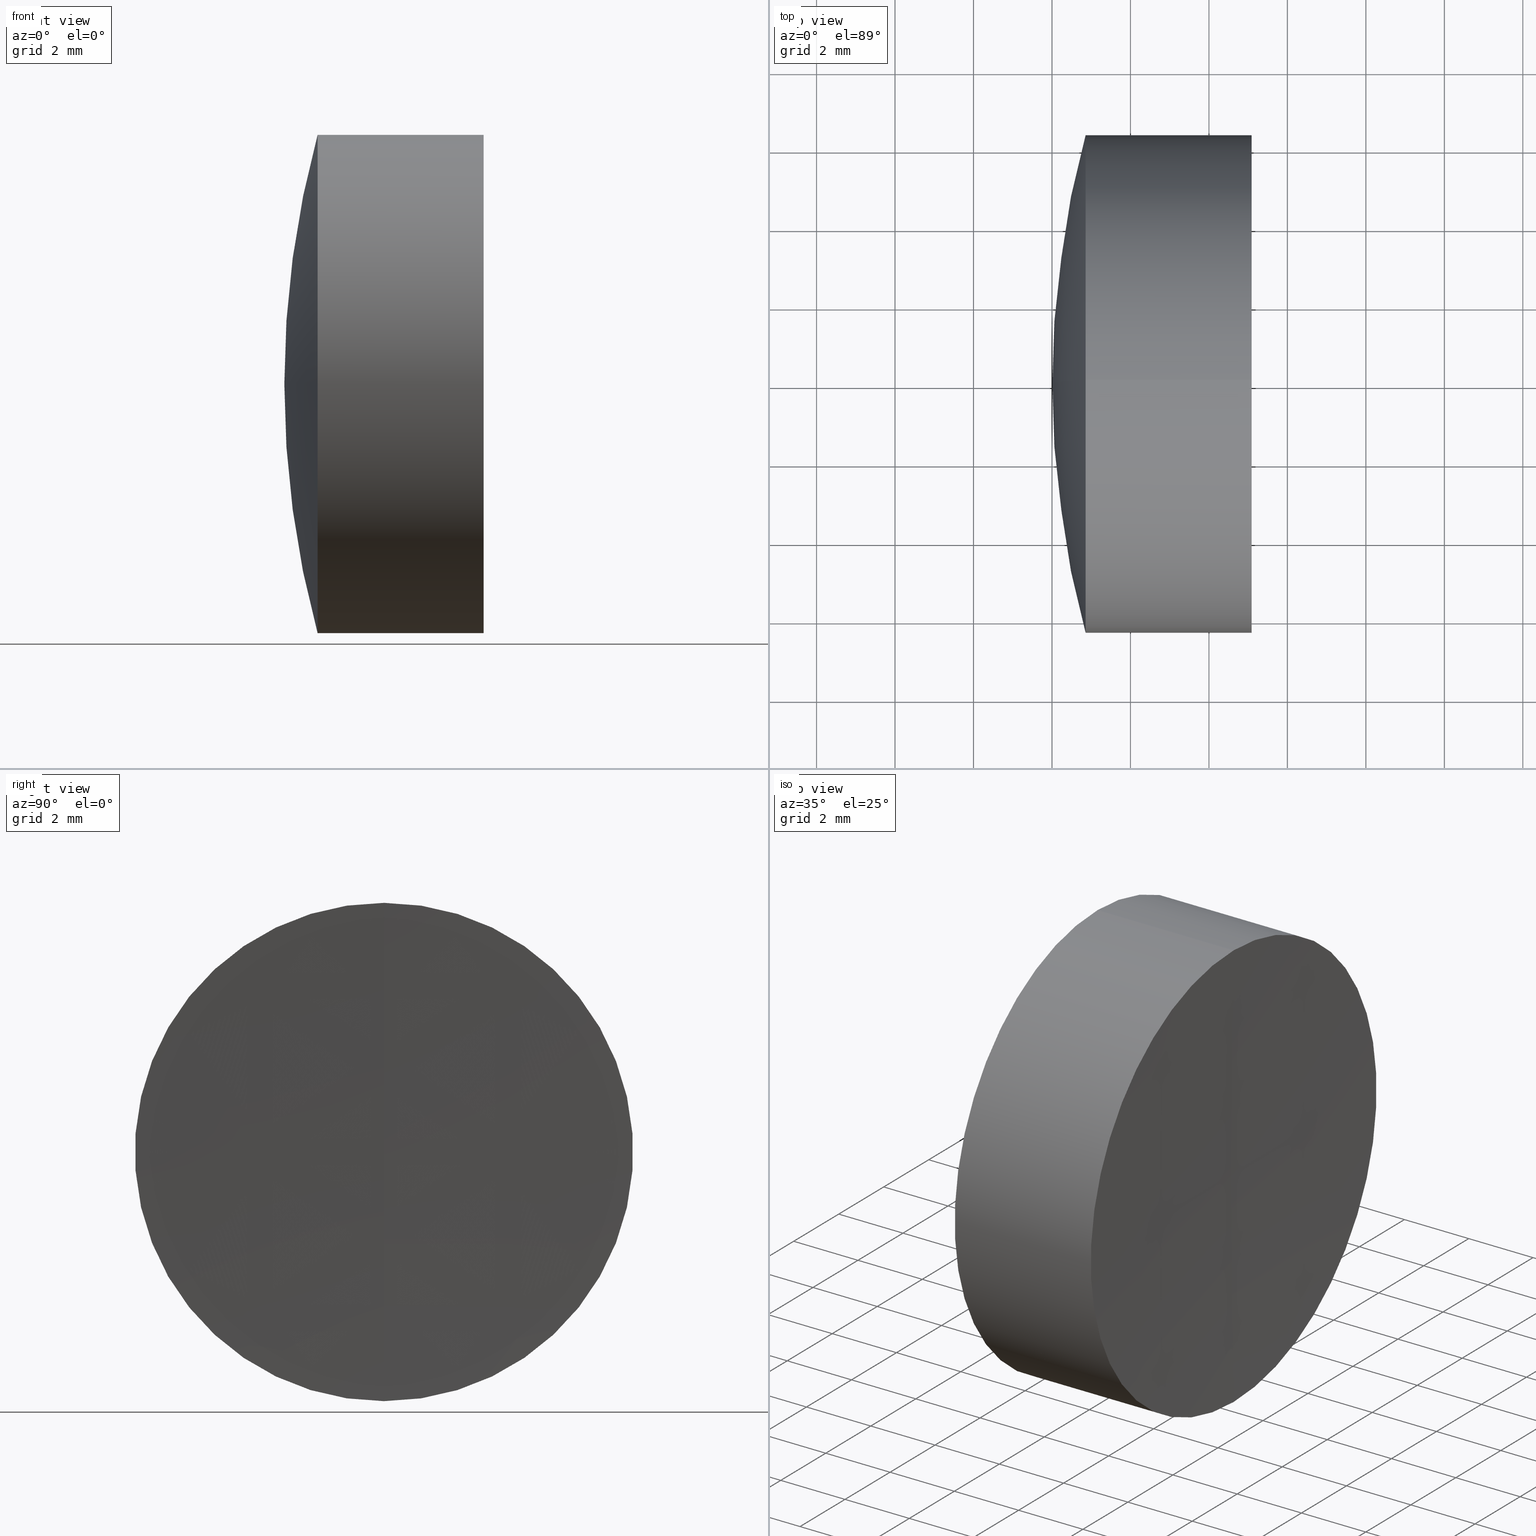
[diagram: canonical four-view strip — front | top / right | iso, engineering-drawing reading convention]
A machine part, canonical four-view strip (front | top / right | iso — engineering-drawing reading convention). The complete STEP part file that produces these views, byte-faithful:
ISO-10303-21;
HEADER;
FILE_DESCRIPTION (( 'STEP AP214' ),
    '1' );
FILE_NAME ('145112.STEP',
    '2019-05-31T01:19:49',
    ( 'user' ),
    ( '΢���й�' ),
    'SwSTEP 2.0',
    'SolidWorks 2016',
    '' );
FILE_SCHEMA (( 'AUTOMOTIVE_DESIGN' ));
ENDSEC;

DATA;
#1 = CARTESIAN_POINT ( 'NONE',  ( 287.5089566504702200, 0.0000000000000000000, -1.828420241096160700E-015 ) ) ;
#2 = DIRECTION ( 'NONE',  ( 0.0000000000000000000, 1.000000000000000000, 0.0000000000000000000 ) ) ;
#3 = EDGE_CURVE ( 'NONE', #342, #303, #123, .T. ) ;
#4 = STYLED_ITEM ( 'NONE', ( #218 ), #281 ) ;
#5 = VERTEX_POINT ( 'NONE', #310 ) ;
#6 = DIRECTION ( 'NONE',  ( 0.0000000000000000000, 1.000000000000000000, 0.0000000000000000000 ) ) ;
#7 = COLOUR_RGB ( '',1.000000000000000000, 1.000000000000000000, 1.000000000000000000 ) ;
#8 = DIRECTION ( 'NONE',  ( 0.0000000000000000000, 1.000000000000000000, 0.0000000000000000000 ) ) ;
#9 = DIRECTION ( 'NONE',  ( -0.0000000000000000000, -1.000000000000000000, -0.0000000000000000000 ) ) ;
#10 = EDGE_LOOP ( 'NONE', ( #326, #204, #52 ) ) ;
#11 = AXIS2_PLACEMENT_3D ( 'NONE', #208, #22, #184 ) ;
#12 = ORIENTED_EDGE ( 'NONE', *, *, #230, .F. ) ;
#13 = SPHERICAL_SURFACE ( 'NONE', #77, 249.9999999999999700 ) ;
#14 = UNCERTAINTY_MEASURE_WITH_UNIT (LENGTH_MEASURE( 1.000000000000000100E-005 ), #308, 'distance_accuracy_value', 'NONE');
#15 = EDGE_CURVE ( 'NONE', #120, #69, #19, .T. ) ;
#16 = FACE_OUTER_BOUND ( 'NONE', #156, .T. ) ;
#17 = PRODUCT_RELATED_PRODUCT_CATEGORY ( 'part', '', ( #159 ) ) ;
#18 = ORIENTED_EDGE ( 'NONE', *, *, #73, .F. ) ;
#19 = CIRCLE ( 'NONE', #116, 6.349999999999932100 ) ;
#20 = AXIS2_PLACEMENT_3D ( 'NONE', #79, #61, #334 ) ;
#21 = ORIENTED_EDGE ( 'NONE', *, *, #332, .T. ) ;
#22 = DIRECTION ( 'NONE',  ( -1.000000000000000000, -0.0000000000000000000, -0.0000000000000000000 ) ) ;
#23 = CARTESIAN_POINT ( 'NONE',  ( 286.7458055381524700, 0.0000000000000000000, 6.349999999999917900 ) ) ;
#24 = SURFACE_STYLE_USAGE ( .BOTH. , #211 ) ;
#25 = ORIENTED_EDGE ( 'NONE', *, *, #124, .F. ) ;
#26 = EDGE_CURVE ( 'NONE', #246, #120, #264, .T. ) ;
#27 = COLOUR_RGB ( '',1.000000000000000000, 1.000000000000000000, 1.000000000000000000 ) ;
#28 = PRESENTATION_LAYER_ASSIGNMENT (  '', '', ( #4 ) ) ;
#29 = CARTESIAN_POINT ( 'NONE',  ( 287.5089566504702200, 0.0000000000000000000, -1.828420241096161500E-015 ) ) ;
#30 = LINE ( 'NONE', #167, #227 ) ;
#31 = DIRECTION ( 'NONE',  ( -1.000000000000000000, -0.0000000000000000000, -0.0000000000000000000 ) ) ;
#32 = DIRECTION ( 'NONE',  ( 0.0000000000000000000, 0.0000000000000000000, 1.000000000000000000 ) ) ;
#33 = DIRECTION ( 'NONE',  ( -0.0000000000000000000, 1.000000000000000000, 1.224646799147353200E-016 ) ) ;
#34 = DIRECTION ( 'NONE',  ( -1.000000000000000000, -0.0000000000000000000, -0.0000000000000000000 ) ) ;
#35 = MANIFOLD_SOLID_BREP ( '��ת1', #314 ) ;
#36 = DIRECTION ( 'NONE',  ( -1.000000000000000000, -0.0000000000000000000, -0.0000000000000000000 ) ) ;
#37 = ORIENTED_EDGE ( 'NONE', *, *, #228, .T. ) ;
#38 = EDGE_CURVE ( 'NONE', #5, #94, #144, .T. ) ;
#39 = CARTESIAN_POINT ( 'NONE',  ( 286.7458055381524700, 0.0000000000000000000, 0.0000000000000000000 ) ) ;
#40 = FACE_OUTER_BOUND ( 'NONE', #233, .T. ) ;
#41 = PRESENTATION_LAYER_ASSIGNMENT (  '', '', ( #320 ) ) ;
#42 = DIRECTION ( 'NONE',  ( -1.000000000000000000, -0.0000000000000000000, -0.0000000000000000000 ) ) ;
#43 = PRODUCT_DEFINITION_SHAPE ( 'NONE', 'NONE',  #324 ) ;
#44 = DIRECTION ( 'NONE',  ( 0.0000000000000000000, 0.0000000000000000000, -1.000000000000000000 ) ) ;
#45 = EDGE_CURVE ( 'NONE', #5, #171, #333, .T. ) ;
#46 = CLOSED_SHELL ( 'NONE', ( #277, #313, #206, #78, #289, #53 ) ) ;
#47 = CARTESIAN_POINT ( 'NONE',  ( 260.7089566504702100, 0.0000000000000000000, -3.469446951953614200E-015 ) ) ;
#48 = ORIENTED_EDGE ( 'NONE', *, *, #280, .F. ) ;
#49 = AXIS2_PLACEMENT_3D ( 'NONE', #309, #137, #286 ) ;
#50 = LINE ( 'NONE', #222, #242 ) ;
#51 = MECHANICAL_DESIGN_GEOMETRIC_PRESENTATION_REPRESENTATION (  '', ( #4 ), #67 ) ;
#52 = ORIENTED_EDGE ( 'NONE', *, *, #38, .F. ) ;
#53 = ADVANCED_FACE ( 'NONE', ( #265 ), #71, .F. ) ;
#54 = DIRECTION ( 'NONE',  ( 0.0000000000000000000, 0.0000000000000000000, 1.000000000000000000 ) ) ;
#55 = LINE ( 'NONE', #298, #247 ) ;
#56 = DIRECTION ( 'NONE',  ( 0.0000000000000000000, 0.0000000000000000000, 1.000000000000000000 ) ) ;
#57 = FILL_AREA_STYLE ('',( #287 ) ) ;
#58 = EDGE_CURVE ( 'NONE', #342, #213, #203, .T. ) ;
#59 =( NAMED_UNIT ( * ) SI_UNIT ( $, .STERADIAN. ) SOLID_ANGLE_UNIT ( ) );
#60 = DIRECTION ( 'NONE',  ( -1.000000000000000000, -0.0000000000000000000, -0.0000000000000000000 ) ) ;
#61 = DIRECTION ( 'NONE',  ( 0.0000000000000000000, 1.000000000000000000, 0.0000000000000000000 ) ) ;
#62 = CARTESIAN_POINT ( 'NONE',  ( -0.5519199926577972300, 0.0000000000000000000, 0.0000000000000000000 ) ) ;
#63 = ORIENTED_EDGE ( 'NONE', *, *, #15, .T. ) ;
#64 = FILL_AREA_STYLE_COLOUR ( '', #7 ) ;
#65 = DIRECTION ( 'NONE',  ( 0.0000000000000000000, 0.0000000000000000000, 1.000000000000000000 ) ) ;
#66 = FACE_OUTER_BOUND ( 'NONE', #128, .T. ) ;
#67 =( GEOMETRIC_REPRESENTATION_CONTEXT ( 3 ) GLOBAL_UNCERTAINTY_ASSIGNED_CONTEXT ( ( #86 ) ) GLOBAL_UNIT_ASSIGNED_CONTEXT ( ( #113, #263, #89 ) ) REPRESENTATION_CONTEXT ( 'NONE', 'WORKASPACE' ) );
#68 = CARTESIAN_POINT ( 'NONE',  ( 308.2089566504702100, 0.0000000000000000000, -3.485532528785909500E-015 ) ) ;
#69 = VERTEX_POINT ( 'NONE', #23 ) ;
#70 = CARTESIAN_POINT ( 'NONE',  ( 308.2089566504702100, 0.0000000000000000000, -3.485532528785909500E-015 ) ) ;
#71 = SPHERICAL_SURFACE ( 'NONE', #151, 249.9999999999999700 ) ;
#72 = AXIS2_PLACEMENT_3D ( 'NONE', #91, #319, #174 ) ;
#73 = EDGE_CURVE ( 'NONE', #122, #99, #131, .T. ) ;
#74 = ORIENTED_EDGE ( 'NONE', *, *, #127, .F. ) ;
#75 = EDGE_LOOP ( 'NONE', ( #48, #260, #101 ) ) ;
#76 = SHAPE_DEFINITION_REPRESENTATION ( #43, #297 ) ;
#77 = AXIS2_PLACEMENT_3D ( 'NONE', #268, #9, #199 ) ;
#78 = ADVANCED_FACE ( 'NONE', ( #207 ), #329, .F. ) ;
#79 = CARTESIAN_POINT ( 'NONE',  ( 260.7089566504702100, 0.0000000000000000000, -3.469446951953614200E-015 ) ) ;
#80 = APPLICATION_CONTEXT ( 'automotive_design' ) ;
#81 = CARTESIAN_POINT ( 'NONE',  ( 289.0896146618997600, 0.0000000000000000000, 0.0000000000000000000 ) ) ;
#82 = ORIENTED_EDGE ( 'NONE', *, *, #127, .T. ) ;
#83 = AXIS2_PLACEMENT_3D ( 'NONE', #189, #339, #165 ) ;
#84 =( LENGTH_UNIT ( ) NAMED_UNIT ( * ) SI_UNIT ( .MILLI., .METRE. ) );
#85 = DIRECTION ( 'NONE',  ( -1.000000000000000000, -0.0000000000000000000, -0.0000000000000000000 ) ) ;
#86 = UNCERTAINTY_MEASURE_WITH_UNIT (LENGTH_MEASURE( 1.000000000000000100E-005 ), #113, 'distance_accuracy_value', 'NONE');
#87 = CIRCLE ( 'NONE', #154, 6.349999999999996100 ) ;
#88 = ADVANCED_FACE ( 'NONE', ( #66 ), #193, .T. ) ;
#89 =( NAMED_UNIT ( * ) SI_UNIT ( $, .STERADIAN. ) SOLID_ANGLE_UNIT ( ) );
#90 = ORIENTED_EDGE ( 'NONE', *, *, #26, .T. ) ;
#91 = CARTESIAN_POINT ( 'NONE',  ( 308.2089566504702100, 0.0000000000000000000, -3.485532528785909500E-015 ) ) ;
#92 = AXIS2_PLACEMENT_3D ( 'NONE', #81, #234, #56 ) ;
#93 = DIRECTION ( 'NONE',  ( -1.000000000000000000, -0.0000000000000000000, -0.0000000000000000000 ) ) ;
#94 = VERTEX_POINT ( 'NONE', #250 ) ;
#95 = CARTESIAN_POINT ( 'NONE',  ( 260.7089566504702100, 0.0000000000000000000, -3.469446951953614200E-015 ) ) ;
#96 = FACE_OUTER_BOUND ( 'NONE', #10, .T. ) ;
#97 = CYLINDRICAL_SURFACE ( 'NONE', #118, 6.349999999999918800 ) ;
#98 = EDGE_CURVE ( 'NONE', #213, #303, #251, .T. ) ;
#99 = VERTEX_POINT ( 'NONE', #105 ) ;
#100 = PRESENTATION_STYLE_ASSIGNMENT (( #24 ) ) ;
#101 = ORIENTED_EDGE ( 'NONE', *, *, #38, .T. ) ;
#102 = FACE_OUTER_BOUND ( 'NONE', #249, .T. ) ;
#103 =( GEOMETRIC_REPRESENTATION_CONTEXT ( 3 ) GLOBAL_UNCERTAINTY_ASSIGNED_CONTEXT ( ( #14 ) ) GLOBAL_UNIT_ASSIGNED_CONTEXT ( ( #308, #134, #283 ) ) REPRESENTATION_CONTEXT ( 'NONE', 'WORKASPACE' ) );
#104 = ADVANCED_FACE ( 'NONE', ( #318 ), #117, .T. ) ;
#105 = CARTESIAN_POINT ( 'NONE',  ( 284.8569224778333400, 0.0000000000000000000, 6.350000000000001400 ) ) ;
#106 = DIRECTION ( 'NONE',  ( 0.0000000000000000000, -1.000000000000000000, 0.0000000000000000000 ) ) ;
#107 = DIRECTION ( 'NONE',  ( 1.000000000000000000, 0.0000000000000000000, 0.0000000000000000000 ) ) ;
#108 = CIRCLE ( 'NONE', #145, 6.349999999999996100 ) ;
#109 = SURFACE_SIDE_STYLE ('',( #148 ) ) ;
#110 = DIRECTION ( 'NONE',  ( -0.0000000000000000000, -1.000000000000000000, -0.0000000000000000000 ) ) ;
#111 = DIRECTION ( 'NONE',  ( 0.0000000000000000000, 0.0000000000000000000, 1.000000000000000000 ) ) ;
#112 = EDGE_CURVE ( 'NONE', #171, #69, #55, .T. ) ;
#113 =( LENGTH_UNIT ( ) NAMED_UNIT ( * ) SI_UNIT ( .MILLI., .METRE. ) );
#114 = ORIENTED_EDGE ( 'NONE', *, *, #112, .T. ) ;
#115 = CARTESIAN_POINT ( 'NONE',  ( 124.5233095260452400, 0.0000000000000000000, 0.0000000000000000000 ) ) ;
#116 = AXIS2_PLACEMENT_3D ( 'NONE', #214, #31, #188 ) ;
#117 = CYLINDRICAL_SURFACE ( 'NONE', #160, 6.349999999999996100 ) ;
#118 = AXIS2_PLACEMENT_3D ( 'NONE', #347, #36, #65 ) ;
#119 = CARTESIAN_POINT ( 'NONE',  ( 289.0896146618997600, 0.0000000000000000000, 6.349999999999906400 ) ) ;
#120 = VERTEX_POINT ( 'NONE', #291 ) ;
#121 = DIRECTION ( 'NONE',  ( -1.000000000000000000, -0.0000000000000000000, -0.0000000000000000000 ) ) ;
#122 = VERTEX_POINT ( 'NONE', #271 ) ;
#123 = CIRCLE ( 'NONE', #294, 26.79999999999999000 ) ;
#124 = EDGE_CURVE ( 'NONE', #99, #201, #305, .T. ) ;
#125 = SPHERICAL_SURFACE ( 'NONE', #254, 24.20000000000000600 ) ;
#126 = ORIENTED_EDGE ( 'NONE', *, *, #112, .F. ) ;
#127 = EDGE_CURVE ( 'NONE', #5, #120, #50, .T. ) ;
#128 = EDGE_LOOP ( 'NONE', ( #149, #312, #274 ) ) ;
#129 = FACE_OUTER_BOUND ( 'NONE', #300, .T. ) ;
#130 = CARTESIAN_POINT ( 'NONE',  ( 260.7089566504702100, 0.0000000000000000000, -3.469446951953614200E-015 ) ) ;
#131 = CIRCLE ( 'NONE', #11, 6.349999999999996100 ) ;
#132 = CARTESIAN_POINT ( 'NONE',  ( 0.0000000000000000000, 0.0000000000000000000, 0.0000000000000000000 ) ) ;
#133 = DIRECTION ( 'NONE',  ( 0.0000000000000000000, 1.000000000000000000, -0.0000000000000000000 ) ) ;
#134 =( NAMED_UNIT ( * ) PLANE_ANGLE_UNIT ( ) SI_UNIT ( $, .RADIAN. ) );
#135 = AXIS2_PLACEMENT_3D ( 'NONE', #278, #106, #252 ) ;
#136 = AXIS2_PLACEMENT_3D ( 'NONE', #343, #34, #111 ) ;
#137 = DIRECTION ( 'NONE',  ( -0.0000000000000000000, 1.000000000000000000, 1.224646799147353200E-016 ) ) ;
#138 = ORIENTED_EDGE ( 'NONE', *, *, #306, .T. ) ;
#139 = CARTESIAN_POINT ( 'NONE',  ( 260.7089566504702100, 0.0000000000000000000, -3.469446951953614200E-015 ) ) ;
#140 = CARTESIAN_POINT ( 'NONE',  ( 286.7458055381524700, 7.776507174585689200E-016, -6.349999999999996100 ) ) ;
#141 = EDGE_LOOP ( 'NONE', ( #198, #330, #284 ) ) ;
#142 = DIRECTION ( 'NONE',  ( 0.0000000000000000000, 0.0000000000000000000, 1.000000000000000000 ) ) ;
#143 = SURFACE_SIDE_STYLE ('',( #219 ) ) ;
#144 = CIRCLE ( 'NONE', #345, 249.9999999999999700 ) ;
#145 = AXIS2_PLACEMENT_3D ( 'NONE', #244, #42, #220 ) ;
#146 = CARTESIAN_POINT ( 'NONE',  ( 286.7458055381524700, 0.0000000000000000000, 6.349999999999996100 ) ) ;
#147 = ORIENTED_EDGE ( 'NONE', *, *, #3, .T. ) ;
#148 = SURFACE_STYLE_FILL_AREA ( #338 ) ;
#149 = ORIENTED_EDGE ( 'NONE', *, *, #3, .F. ) ;
#150 = DIRECTION ( 'NONE',  ( -1.000000000000000000, -0.0000000000000000000, -0.0000000000000000000 ) ) ;
#151 = AXIS2_PLACEMENT_3D ( 'NONE', #256, #110, #210 ) ;
#152 = AXIS2_PLACEMENT_3D ( 'NONE', #68, #6, #195 ) ;
#153 = ORIENTED_EDGE ( 'NONE', *, *, #15, .F. ) ;
#154 = AXIS2_PLACEMENT_3D ( 'NONE', #238, #60, #212 ) ;
#155 = CYLINDRICAL_SURFACE ( 'NONE', #136, 6.349999999999996100 ) ;
#156 = EDGE_LOOP ( 'NONE', ( #245, #323, #175, #18 ) ) ;
#157 = ADVANCED_FACE ( 'NONE', ( #181 ), #125, .T. ) ;
#158 = DIRECTION ( 'NONE',  ( 0.0000000000000000000, 1.000000000000000000, 0.0000000000000000000 ) ) ;
#159 = PRODUCT ( '145112', '145112', '', ( #253 ) ) ;
#160 = AXIS2_PLACEMENT_3D ( 'NONE', #115, #344, #142 ) ;
#161 =( NAMED_UNIT ( * ) SI_UNIT ( $, .STERADIAN. ) SOLID_ANGLE_UNIT ( ) );
#162 = EDGE_LOOP ( 'NONE', ( #225, #21, #196, #337 ) ) ;
#163 = CIRCLE ( 'NONE', #299, 26.79999999999999700 ) ;
#164 = EDGE_CURVE ( 'NONE', #99, #122, #108, .T. ) ;
#165 = DIRECTION ( 'NONE',  ( 0.0000000000000000000, 0.0000000000000000000, 1.000000000000000000 ) ) ;
#166 = FACE_OUTER_BOUND ( 'NONE', #217, .T. ) ;
#167 = CARTESIAN_POINT ( 'NONE',  ( 124.5233095260452400, 0.0000000000000000000, 6.349999999999996100 ) ) ;
#168 = AXIS2_PLACEMENT_3D ( 'NONE', #39, #93, #180 ) ;
#169 = CARTESIAN_POINT ( 'NONE',  ( 286.7458055381524700, 0.0000000000000000000, 0.0000000000000000000 ) ) ;
#170 = DIRECTION ( 'NONE',  ( 0.0000000000000000000, 1.224646799147353200E-016, -1.000000000000000000 ) ) ;
#171 = VERTEX_POINT ( 'NONE', #119 ) ;
#172 =( GEOMETRIC_REPRESENTATION_CONTEXT ( 3 ) GLOBAL_UNCERTAINTY_ASSIGNED_CONTEXT ( ( #182 ) ) GLOBAL_UNIT_ASSIGNED_CONTEXT ( ( #84, #237, #59 ) ) REPRESENTATION_CONTEXT ( 'NONE', 'WORKASPACE' ) );
#173 = SURFACE_STYLE_FILL_AREA ( #57 ) ;
#174 = DIRECTION ( 'NONE',  ( 0.0000000000000000000, -1.224646799147353200E-016, 1.000000000000000000 ) ) ;
#175 = ORIENTED_EDGE ( 'NONE', *, *, #292, .T. ) ;
#176 = SPHERICAL_SURFACE ( 'NONE', #202, 26.79999999999999000 ) ;
#177 = AXIS2_PLACEMENT_3D ( 'NONE', #62, #261, #32 ) ;
#178 = CARTESIAN_POINT ( 'NONE',  ( 308.2089566504702100, 0.0000000000000000000, -3.485532528785909500E-015 ) ) ;
#179 = ORIENTED_EDGE ( 'NONE', *, *, #164, .T. ) ;
#180 = DIRECTION ( 'NONE',  ( 0.0000000000000000000, 0.0000000000000000000, 1.000000000000000000 ) ) ;
#181 = FACE_OUTER_BOUND ( 'NONE', #241, .T. ) ;
#182 = UNCERTAINTY_MEASURE_WITH_UNIT (LENGTH_MEASURE( 1.000000000000000100E-005 ), #84, 'distance_accuracy_value', 'NONE');
#183 = ADVANCED_FACE ( 'NONE', ( #301 ), #185, .T. ) ;
#184 = DIRECTION ( 'NONE',  ( 0.0000000000000000000, 0.0000000000000000000, 1.000000000000000000 ) ) ;
#185 = SPHERICAL_SURFACE ( 'NONE', #152, 24.20000000000000600 ) ;
#186 =( LENGTH_UNIT ( ) NAMED_UNIT ( * ) SI_UNIT ( .MILLI., .METRE. ) );
#187 = PRODUCT_DEFINITION_CONTEXT ( 'detailed design', #80, 'design' ) ;
#188 = DIRECTION ( 'NONE',  ( 0.0000000000000000000, 0.0000000000000000000, 1.000000000000000000 ) ) ;
#189 = CARTESIAN_POINT ( 'NONE',  ( 289.0896146618997600, 0.0000000000000000000, 0.0000000000000000000 ) ) ;
#190 = ORIENTED_EDGE ( 'NONE', *, *, #200, .T. ) ;
#191 = ADVANCED_FACE ( 'NONE', ( #40 ), #176, .T. ) ;
#192 = CARTESIAN_POINT ( 'NONE',  ( 539.0089566504700500, 0.0000000000000000000, 0.0000000000000000000 ) ) ;
#193 = SPHERICAL_SURFACE ( 'NONE', #194, 26.79999999999999000 ) ;
#194 = AXIS2_PLACEMENT_3D ( 'NONE', #130, #158, #54 ) ;
#195 = DIRECTION ( 'NONE',  ( 0.0000000000000000000, 0.0000000000000000000, 1.000000000000000000 ) ) ;
#196 = ORIENTED_EDGE ( 'NONE', *, *, #164, .F. ) ;
#197 = DIRECTION ( 'NONE',  ( 0.0000000000000000000, -1.000000000000000000, 0.0000000000000000000 ) ) ;
#198 = ORIENTED_EDGE ( 'NONE', *, *, #200, .F. ) ;
#199 = DIRECTION ( 'NONE',  ( 0.0000000000000000000, 0.0000000000000000000, -1.000000000000000000 ) ) ;
#200 = EDGE_CURVE ( 'NONE', #122, #201, #235, .T. ) ;
#201 = VERTEX_POINT ( 'NONE', #296 ) ;
#202 = AXIS2_PLACEMENT_3D ( 'NONE', #243, #321, #270 ) ;
#203 = CIRCLE ( 'NONE', #135, 26.79999999999999000 ) ;
#204 = ORIENTED_EDGE ( 'NONE', *, *, #280, .T. ) ;
#205 = STYLED_ITEM ( 'NONE', ( #100 ), #297 ) ;
#206 = ADVANCED_FACE ( 'NONE', ( #102 ), #295, .F. ) ;
#207 = FACE_OUTER_BOUND ( 'NONE', #229, .T. ) ;
#208 = CARTESIAN_POINT ( 'NONE',  ( 284.8569224778333400, 0.0000000000000000000, 0.0000000000000000000 ) ) ;
#209 = AXIS2_PLACEMENT_3D ( 'NONE', #70, #197, #44 ) ;
#210 = DIRECTION ( 'NONE',  ( 0.0000000000000000000, 0.0000000000000000000, -1.000000000000000000 ) ) ;
#211 = SURFACE_SIDE_STYLE ('',( #173 ) ) ;
#212 = DIRECTION ( 'NONE',  ( 0.0000000000000000000, 0.0000000000000000000, 1.000000000000000000 ) ) ;
#213 = VERTEX_POINT ( 'NONE', #146 ) ;
#214 = CARTESIAN_POINT ( 'NONE',  ( 286.7458055381524700, 0.0000000000000000000, 0.0000000000000000000 ) ) ;
#215 = VECTOR ( 'NONE', #85, 1000.000000000000000 ) ;
#216 = DIRECTION ( 'NONE',  ( 0.0000000000000000000, 0.0000000000000000000, 1.000000000000000000 ) ) ;
#217 = EDGE_LOOP ( 'NONE', ( #138, #82, #224, #126 ) ) ;
#218 = PRESENTATION_STYLE_ASSIGNMENT (( #290 ) ) ;
#219 = SURFACE_STYLE_FILL_AREA ( #315 ) ;
#220 = DIRECTION ( 'NONE',  ( 0.0000000000000000000, 0.0000000000000000000, 1.000000000000000000 ) ) ;
#221 = PRESENTATION_LAYER_ASSIGNMENT (  '', '', ( #205 ) ) ;
#222 = CARTESIAN_POINT ( 'NONE',  ( -0.5519199926577972300, 7.776507174585593600E-016, -6.349999999999918800 ) ) ;
#223 = CIRCLE ( 'NONE', #83, 6.349999999999906400 ) ;
#224 = ORIENTED_EDGE ( 'NONE', *, *, #228, .F. ) ;
#225 = ORIENTED_EDGE ( 'NONE', *, *, #98, .T. ) ;
#226 = CIRCLE ( 'NONE', #168, 6.349999999999932100 ) ;
#227 = VECTOR ( 'NONE', #311, 1000.000000000000000 ) ;
#228 = EDGE_CURVE ( 'NONE', #69, #120, #226, .T. ) ;
#229 = EDGE_LOOP ( 'NONE', ( #293, #262, #37 ) ) ;
#230 = EDGE_CURVE ( 'NONE', #246, #69, #163, .T. ) ;
#231 = COLOUR_RGB ( '',1.000000000000000000, 1.000000000000000000, 1.000000000000000000 ) ;
#232 = APPLICATION_PROTOCOL_DEFINITION ( 'draft international standard', 'automotive_design', 1998, #80 ) ;
#233 = EDGE_LOOP ( 'NONE', ( #272, #147, #269 ) ) ;
#234 = DIRECTION ( 'NONE',  ( -1.000000000000000000, -0.0000000000000000000, -0.0000000000000000000 ) ) ;
#235 = CIRCLE ( 'NONE', #72, 24.20000000000000600 ) ;
#236 = APPLICATION_CONTEXT ( 'automotive_design' ) ;
#237 =( NAMED_UNIT ( * ) PLANE_ANGLE_UNIT ( ) SI_UNIT ( $, .RADIAN. ) );
#238 = CARTESIAN_POINT ( 'NONE',  ( 286.7458055381524700, 0.0000000000000000000, 0.0000000000000000000 ) ) ;
#239 = MECHANICAL_DESIGN_GEOMETRIC_PRESENTATION_REPRESENTATION (  '', ( #205 ), #248 ) ;
#240 = UNCERTAINTY_MEASURE_WITH_UNIT (LENGTH_MEASURE( 1.000000000000000100E-005 ), #186, 'distance_accuracy_value', 'NONE');
#241 = EDGE_LOOP ( 'NONE', ( #179, #190, #25 ) ) ;
#242 = VECTOR ( 'NONE', #121, 1000.000000000000000 ) ;
#243 = CARTESIAN_POINT ( 'NONE',  ( 260.7089566504702100, 0.0000000000000000000, -3.469446951953614200E-015 ) ) ;
#244 = CARTESIAN_POINT ( 'NONE',  ( 284.8569224778333400, 0.0000000000000000000, 0.0000000000000000000 ) ) ;
#245 = ORIENTED_EDGE ( 'NONE', *, *, #332, .F. ) ;
#246 = VERTEX_POINT ( 'NONE', #1 ) ;
#247 = VECTOR ( 'NONE', #150, 1000.000000000000000 ) ;
#248 =( GEOMETRIC_REPRESENTATION_CONTEXT ( 3 ) GLOBAL_UNCERTAINTY_ASSIGNED_CONTEXT ( ( #240 ) ) GLOBAL_UNIT_ASSIGNED_CONTEXT ( ( #186, #335, #161 ) ) REPRESENTATION_CONTEXT ( 'NONE', 'WORKASPACE' ) );
#249 = EDGE_LOOP ( 'NONE', ( #12, #90, #63 ) ) ;
#250 = CARTESIAN_POINT ( 'NONE',  ( 289.0089566504701100, 0.0000000000000000000, -1.530808498934191200E-014 ) ) ;
#251 = CIRCLE ( 'NONE', #255, 6.349999999999996100 ) ;
#252 = DIRECTION ( 'NONE',  ( 0.0000000000000000000, 0.0000000000000000000, -1.000000000000000000 ) ) ;
#253 = PRODUCT_CONTEXT ( 'NONE', #236, 'mechanical' ) ;
#254 = AXIS2_PLACEMENT_3D ( 'NONE', #178, #8, #322 ) ;
#255 = AXIS2_PLACEMENT_3D ( 'NONE', #169, #317, #216 ) ;
#256 = CARTESIAN_POINT ( 'NONE',  ( 539.0089566504700500, 0.0000000000000000000, 0.0000000000000000000 ) ) ;
#257 = APPLICATION_PROTOCOL_DEFINITION ( 'draft international standard', 'automotive_design', 1998, #236 ) ;
#258 = SURFACE_STYLE_USAGE ( .BOTH. , #109 ) ;
#259 = CARTESIAN_POINT ( 'NONE',  ( 124.5233095260452400, 7.776507174585689200E-016, -6.349999999999996100 ) ) ;
#260 = ORIENTED_EDGE ( 'NONE', *, *, #45, .F. ) ;
#261 = DIRECTION ( 'NONE',  ( -1.000000000000000000, -0.0000000000000000000, -0.0000000000000000000 ) ) ;
#262 = ORIENTED_EDGE ( 'NONE', *, *, #230, .T. ) ;
#263 =( NAMED_UNIT ( * ) PLANE_ANGLE_UNIT ( ) SI_UNIT ( $, .RADIAN. ) );
#264 = CIRCLE ( 'NONE', #49, 26.79999999999999700 ) ;
#265 = FACE_OUTER_BOUND ( 'NONE', #75, .T. ) ;
#266 = FILL_AREA_STYLE_COLOUR ( '', #27 ) ;
#267 = DIRECTION ( 'NONE',  ( 0.0000000000000000000, 0.0000000000000000000, -1.000000000000000000 ) ) ;
#268 = CARTESIAN_POINT ( 'NONE',  ( 539.0089566504700500, 0.0000000000000000000, 0.0000000000000000000 ) ) ;
#269 = ORIENTED_EDGE ( 'NONE', *, *, #98, .F. ) ;
#270 = DIRECTION ( 'NONE',  ( 0.0000000000000000000, 0.0000000000000000000, 1.000000000000000000 ) ) ;
#271 = CARTESIAN_POINT ( 'NONE',  ( 284.8569224778333400, 7.776507174585695100E-016, -6.350000000000005000 ) ) ;
#272 = ORIENTED_EDGE ( 'NONE', *, *, #58, .F. ) ;
#273 = AXIS2_PLACEMENT_3D ( 'NONE', #95, #2, #316 ) ;
#274 = ORIENTED_EDGE ( 'NONE', *, *, #328, .F. ) ;
#275 = CYLINDRICAL_SURFACE ( 'NONE', #177, 6.349999999999918800 ) ;
#276 = AXIS2_PLACEMENT_3D ( 'NONE', #192, #346, #170 ) ;
#277 = ADVANCED_FACE ( 'NONE', ( #96 ), #13, .F. ) ;
#278 = CARTESIAN_POINT ( 'NONE',  ( 260.7089566504702100, 0.0000000000000000000, -3.469446951953614200E-015 ) ) ;
#279 = DIRECTION ( 'NONE',  ( 0.0000000000000000000, 0.0000000000000000000, 1.000000000000000000 ) ) ;
#280 = EDGE_CURVE ( 'NONE', #171, #94, #285, .T. ) ;
#281 = MANIFOLD_SOLID_BREP ( '��ת3', #46 ) ;
#282 = DIRECTION ( 'NONE',  ( 0.0000000000000000000, 0.0000000000000000000, 1.000000000000000000 ) ) ;
#283 =( NAMED_UNIT ( * ) SI_UNIT ( $, .STERADIAN. ) SOLID_ANGLE_UNIT ( ) );
#284 = ORIENTED_EDGE ( 'NONE', *, *, #124, .T. ) ;
#285 = CIRCLE ( 'NONE', #276, 249.9999999999999700 ) ;
#286 = DIRECTION ( 'NONE',  ( 0.0000000000000000000, -1.224646799147353200E-016, 1.000000000000000000 ) ) ;
#287 = FILL_AREA_STYLE_COLOUR ( '', #231 ) ;
#288 = LINE ( 'NONE', #259, #215 ) ;
#289 = ADVANCED_FACE ( 'NONE', ( #129 ), #97, .T. ) ;
#290 = SURFACE_STYLE_USAGE ( .BOTH. , #143 ) ;
#291 = CARTESIAN_POINT ( 'NONE',  ( 286.7458055381524700, 7.776507174585592600E-016, -6.349999999999921500 ) ) ;
#292 = EDGE_CURVE ( 'NONE', #213, #99, #30, .T. ) ;
#293 = ORIENTED_EDGE ( 'NONE', *, *, #26, .F. ) ;
#294 = AXIS2_PLACEMENT_3D ( 'NONE', #139, #33, #341 ) ;
#295 = SPHERICAL_SURFACE ( 'NONE', #273, 26.79999999999999700 ) ;
#296 = CARTESIAN_POINT ( 'NONE',  ( 284.0089566504702200, 0.0000000000000000000, -2.003709901817612000E-015 ) ) ;
#297 = ADVANCED_BREP_SHAPE_REPRESENTATION ( '145112', ( #35, #281, #302 ), #103 ) ;
#298 = CARTESIAN_POINT ( 'NONE',  ( -0.5519199926577972300, 0.0000000000000000000, 6.349999999999918800 ) ) ;
#299 = AXIS2_PLACEMENT_3D ( 'NONE', #47, #325, #267 ) ;
#300 = EDGE_LOOP ( 'NONE', ( #74, #331, #114, #153 ) ) ;
#301 = FACE_OUTER_BOUND ( 'NONE', #141, .T. ) ;
#302 = AXIS2_PLACEMENT_3D ( 'NONE', #132, #279, #107 ) ;
#303 = VERTEX_POINT ( 'NONE', #140 ) ;
#304 = ADVANCED_FACE ( 'NONE', ( #16 ), #155, .T. ) ;
#305 = CIRCLE ( 'NONE', #209, 24.20000000000000600 ) ;
#306 = EDGE_CURVE ( 'NONE', #171, #5, #223, .T. ) ;
#307 = CARTESIAN_POINT ( 'NONE',  ( 539.0089566504700500, 0.0000000000000000000, 0.0000000000000000000 ) ) ;
#308 =( LENGTH_UNIT ( ) NAMED_UNIT ( * ) SI_UNIT ( .MILLI., .METRE. ) );
#309 = CARTESIAN_POINT ( 'NONE',  ( 260.7089566504702100, 0.0000000000000000000, -3.469446951953614200E-015 ) ) ;
#310 = CARTESIAN_POINT ( 'NONE',  ( 289.0896146618997600, 7.776507174585584700E-016, -6.349999999999906400 ) ) ;
#311 = DIRECTION ( 'NONE',  ( -1.000000000000000000, -0.0000000000000000000, -0.0000000000000000000 ) ) ;
#312 = ORIENTED_EDGE ( 'NONE', *, *, #58, .T. ) ;
#313 = ADVANCED_FACE ( 'NONE', ( #166 ), #275, .T. ) ;
#314 = CLOSED_SHELL ( 'NONE', ( #191, #104, #157, #183, #304, #88 ) ) ;
#315 = FILL_AREA_STYLE ('',( #266 ) ) ;
#316 = DIRECTION ( 'NONE',  ( 0.0000000000000000000, 0.0000000000000000000, 1.000000000000000000 ) ) ;
#317 = DIRECTION ( 'NONE',  ( -1.000000000000000000, -0.0000000000000000000, -0.0000000000000000000 ) ) ;
#318 = FACE_OUTER_BOUND ( 'NONE', #162, .T. ) ;
#319 = DIRECTION ( 'NONE',  ( -0.0000000000000000000, 1.000000000000000000, 1.224646799147353200E-016 ) ) ;
#320 = STYLED_ITEM ( 'NONE', ( #327 ), #35 ) ;
#321 = DIRECTION ( 'NONE',  ( 0.0000000000000000000, 1.000000000000000000, 0.0000000000000000000 ) ) ;
#322 = DIRECTION ( 'NONE',  ( 0.0000000000000000000, 0.0000000000000000000, 1.000000000000000000 ) ) ;
#323 = ORIENTED_EDGE ( 'NONE', *, *, #328, .T. ) ;
#324 = PRODUCT_DEFINITION ( 'δ֪', '', #340, #187 ) ;
#325 = DIRECTION ( 'NONE',  ( 0.0000000000000000000, -1.000000000000000000, 0.0000000000000000000 ) ) ;
#326 = ORIENTED_EDGE ( 'NONE', *, *, #306, .F. ) ;
#327 = PRESENTATION_STYLE_ASSIGNMENT (( #258 ) ) ;
#328 = EDGE_CURVE ( 'NONE', #303, #213, #87, .T. ) ;
#329 = SPHERICAL_SURFACE ( 'NONE', #20, 26.79999999999999700 ) ;
#330 = ORIENTED_EDGE ( 'NONE', *, *, #73, .T. ) ;
#331 = ORIENTED_EDGE ( 'NONE', *, *, #45, .T. ) ;
#332 = EDGE_CURVE ( 'NONE', #303, #122, #288, .T. ) ;
#333 = CIRCLE ( 'NONE', #92, 6.349999999999906400 ) ;
#334 = DIRECTION ( 'NONE',  ( 0.0000000000000000000, 0.0000000000000000000, 1.000000000000000000 ) ) ;
#335 =( NAMED_UNIT ( * ) PLANE_ANGLE_UNIT ( ) SI_UNIT ( $, .RADIAN. ) );
#336 = MECHANICAL_DESIGN_GEOMETRIC_PRESENTATION_REPRESENTATION (  '', ( #320 ), #172 ) ;
#337 = ORIENTED_EDGE ( 'NONE', *, *, #292, .F. ) ;
#338 = FILL_AREA_STYLE ('',( #64 ) ) ;
#339 = DIRECTION ( 'NONE',  ( -1.000000000000000000, -0.0000000000000000000, -0.0000000000000000000 ) ) ;
#340 = PRODUCT_DEFINITION_FORMATION_WITH_SPECIFIED_SOURCE ( '�κ�', '', #159, .NOT_KNOWN. ) ;
#341 = DIRECTION ( 'NONE',  ( 0.0000000000000000000, -1.224646799147353200E-016, 1.000000000000000000 ) ) ;
#342 = VERTEX_POINT ( 'NONE', #29 ) ;
#343 = CARTESIAN_POINT ( 'NONE',  ( 124.5233095260452400, 0.0000000000000000000, 0.0000000000000000000 ) ) ;
#344 = DIRECTION ( 'NONE',  ( -1.000000000000000000, -0.0000000000000000000, -0.0000000000000000000 ) ) ;
#345 = AXIS2_PLACEMENT_3D ( 'NONE', #307, #133, #282 ) ;
#346 = DIRECTION ( 'NONE',  ( 0.0000000000000000000, -1.000000000000000000, -1.224646799147353200E-016 ) ) ;
#347 = CARTESIAN_POINT ( 'NONE',  ( -0.5519199926577972300, 0.0000000000000000000, 0.0000000000000000000 ) ) ;
ENDSEC;
END-ISO-10303-21;
